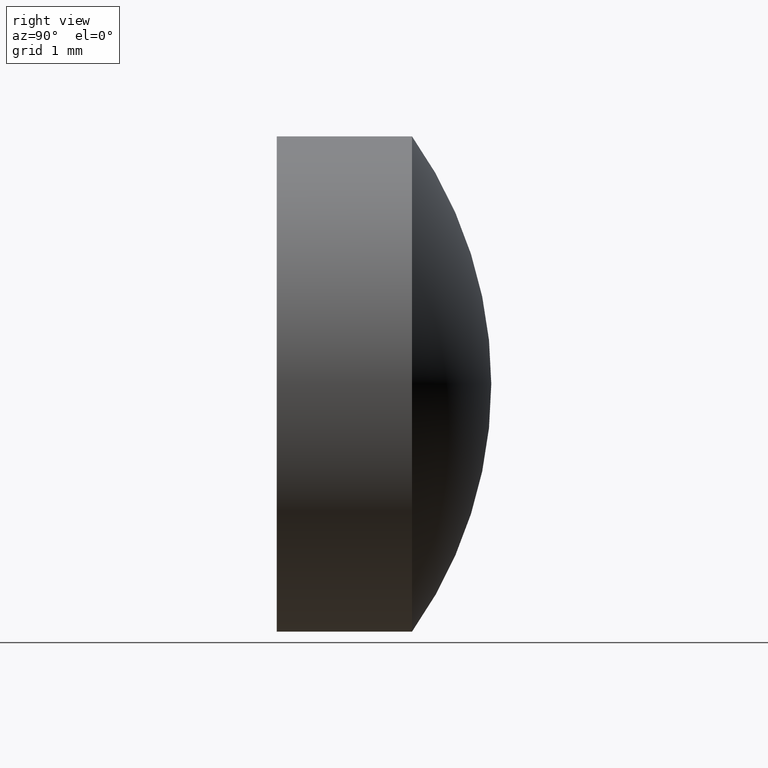
[diagram: clean part render]
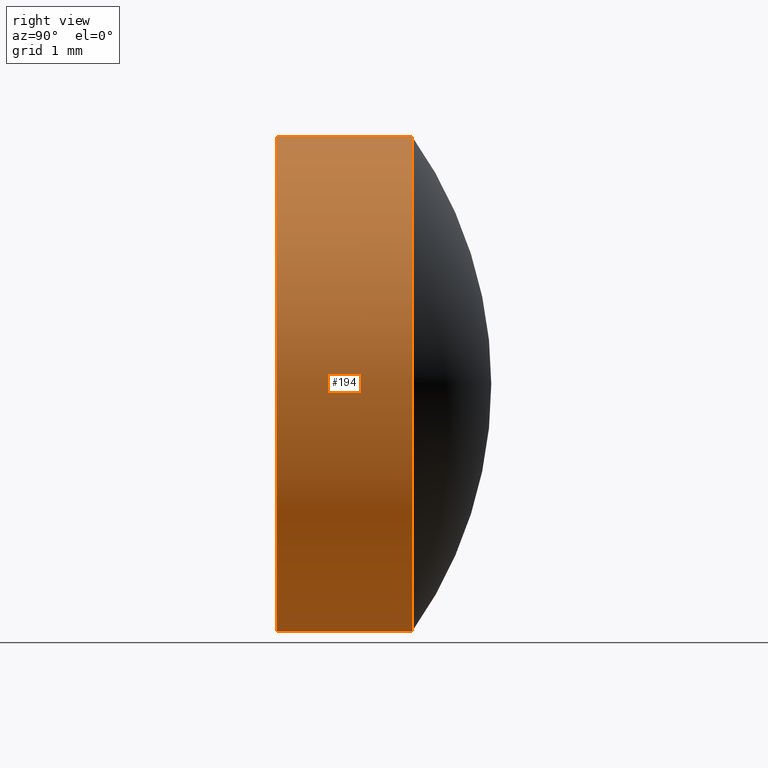
[diagram: same view with one face highlighted and labeled with its STEP entity id]
A machine part, right view. The second image highlights one B-rep face of the part: STEP entity #194.
In plain terms, the highlighted cylindrical surface (partial cylindrical patch) has radius 3 mm, axis along (-0, 1, -0).
Its self-contained STEP definition (entity closure, byte-faithful):
#22 = VERTEX_POINT ( 'NONE', #118 ) ;
#24 = CIRCLE ( 'NONE', #44, 3.000000000000000000 ) ;
#25 = DIRECTION ( 'NONE',  ( 0.000000000000000000, 0.000000000000000000, 1.000000000000000000 ) ) ;
#28 = CARTESIAN_POINT ( 'NONE',  ( 0.000000000000000000, 1.639999999999999236, 3.000000000000000444 ) ) ;
#39 = VERTEX_POINT ( 'NONE', #28 ) ;
#44 = AXIS2_PLACEMENT_3D ( 'NONE', #105, #123, #168 ) ;
#49 = CARTESIAN_POINT ( 'NONE',  ( 3.673940397442060361E-16, 1.639999999999999236, -3.000000000000000444 ) ) ;
#53 = EDGE_CURVE ( 'NONE', #22, #39, #199, .T. ) ;
#54 = AXIS2_PLACEMENT_3D ( 'NONE', #133, #61, #25 ) ;
#61 = DIRECTION ( 'NONE',  ( -0.000000000000000000, 1.000000000000000000, -0.000000000000000000 ) ) ;
#62 = DIRECTION ( 'NONE',  ( -0.000000000000000000, 1.000000000000000000, -0.000000000000000000 ) ) ;
#72 = EDGE_CURVE ( 'NONE', #39, #162, #113, .T. ) ;
#73 = VERTEX_POINT ( 'NONE', #148 ) ;
#86 = ORIENTED_EDGE ( 'NONE', *, *, #120, .T. ) ;
#91 = EDGE_CURVE ( 'NONE', #73, #162, #131, .T. ) ;
#92 = FACE_OUTER_BOUND ( 'NONE', #115, .T. ) ;
#99 = ORIENTED_EDGE ( 'NONE', *, *, #53, .F. ) ;
#102 = ORIENTED_EDGE ( 'NONE', *, *, #91, .T. ) ;
#105 = CARTESIAN_POINT ( 'NONE',  ( 0.000000000000000000, -4.336808689942017736E-16, 0.000000000000000000 ) ) ;
#108 = CYLINDRICAL_SURFACE ( 'NONE', #156, 3.000000000000000000 ) ;
#113 = CIRCLE ( 'NONE', #54, 3.000000000000000000 ) ;
#115 = EDGE_LOOP ( 'NONE', ( #86, #102, #146, #99 ) ) ;
#118 = CARTESIAN_POINT ( 'NONE',  ( 0.000000000000000000, -4.336808689942017736E-16, 3.000000000000000000 ) ) ;
#119 = DIRECTION ( 'NONE',  ( 0.000000000000000000, 0.000000000000000000, 1.000000000000000000 ) ) ;
#120 = EDGE_CURVE ( 'NONE', #22, #73, #24, .T. ) ;
#121 = CARTESIAN_POINT ( 'NONE',  ( 3.673940397442059868E-16, 2.600000000000000089, -3.000000000000000000 ) ) ;
#123 = DIRECTION ( 'NONE',  ( -0.000000000000000000, 1.000000000000000000, -0.000000000000000000 ) ) ;
#131 = LINE ( 'NONE', #121, #193 ) ;
#133 = CARTESIAN_POINT ( 'NONE',  ( 0.000000000000000000, 1.639999999999999458, 0.000000000000000000 ) ) ;
#146 = ORIENTED_EDGE ( 'NONE', *, *, #72, .F. ) ;
#147 = VECTOR ( 'NONE', #184, 1000.000000000000000 ) ;
#148 = CARTESIAN_POINT ( 'NONE',  ( 3.673940397442059868E-16, -4.336808689942017736E-16, -3.000000000000000000 ) ) ;
#151 = CARTESIAN_POINT ( 'NONE',  ( 0.000000000000000000, 2.600000000000000089, 0.000000000000000000 ) ) ;
#156 = AXIS2_PLACEMENT_3D ( 'NONE', #151, #62, #119 ) ;
#162 = VERTEX_POINT ( 'NONE', #49 ) ;
#168 = DIRECTION ( 'NONE',  ( 0.000000000000000000, 0.000000000000000000, 1.000000000000000000 ) ) ;
#170 = CARTESIAN_POINT ( 'NONE',  ( 0.000000000000000000, 2.600000000000000089, 3.000000000000000000 ) ) ;
#184 = DIRECTION ( 'NONE',  ( -0.000000000000000000, 1.000000000000000000, -0.000000000000000000 ) ) ;
#193 = VECTOR ( 'NONE', #200, 1000.000000000000000 ) ;
#194 = ADVANCED_FACE ( 'NONE', ( #92 ), #108, .T. ) ;
#199 = LINE ( 'NONE', #170, #147 ) ;
#200 = DIRECTION ( 'NONE',  ( -0.000000000000000000, 1.000000000000000000, -0.000000000000000000 ) ) ;